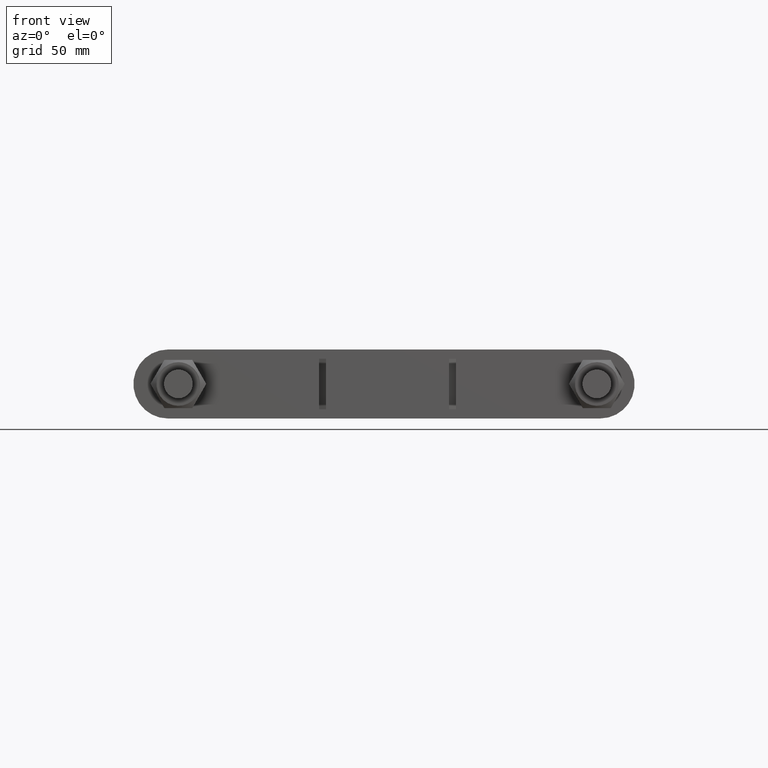
[diagram: clean part render]
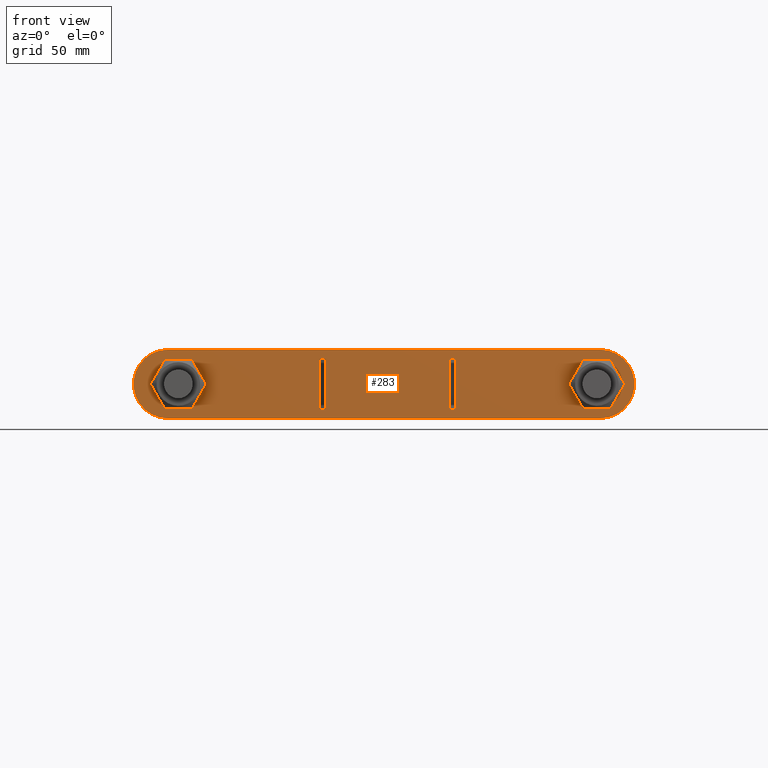
[diagram: same view with one face highlighted and labeled with its STEP entity id]
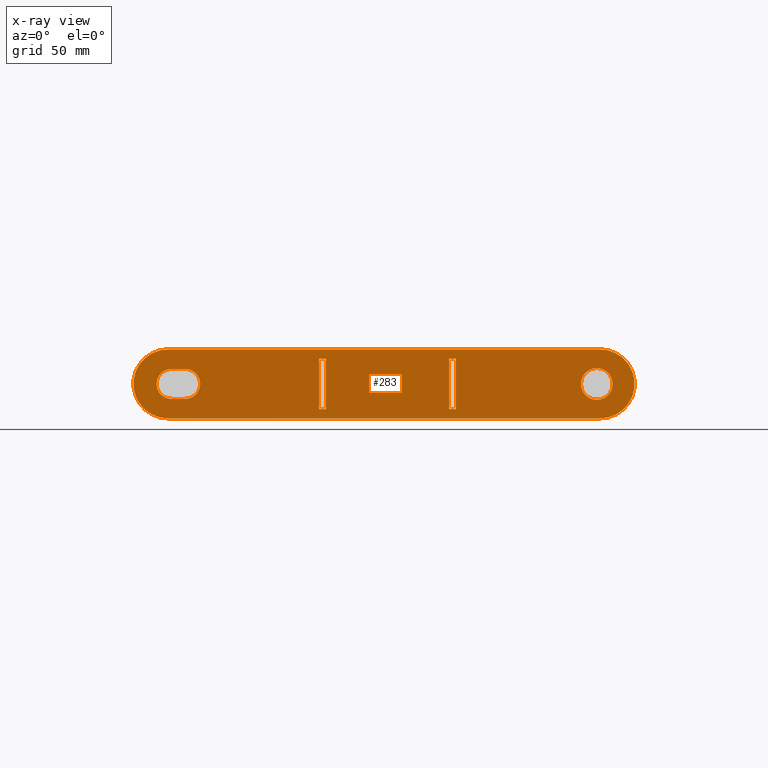
[diagram: x-ray of the same camera — body ghosted, the highlighted face saturated]
A machine part, front view. The second image highlights one B-rep face of the part: STEP entity #283.
The next image is the same camera in x-ray: the body ghosted, the highlighted face saturated — about 0% of this face is hidden behind the body in this view.
In plain terms, the highlighted planar face has unit normal (0, 1, 0).
Its self-contained STEP definition (entity closure, byte-faithful):
#283 = ADVANCED_FACE( '', ( #385, #386, #387, #388, #389 ), #390, .F. );
#385 = FACE_OUTER_BOUND( '', #1467, .T. );
#386 = FACE_BOUND( '', #1468, .T. );
#387 = FACE_BOUND( '', #1469, .T. );
#388 = FACE_BOUND( '', #1470, .T. );
#389 = FACE_BOUND( '', #1471, .T. );
#390 = PLANE( '', #1472 );
#1467 = EDGE_LOOP( '', ( #1734, #1735, #1736, #1737 ) );
#1468 = EDGE_LOOP( '', ( #1738, #1739, #1740, #1741 ) );
#1469 = EDGE_LOOP( '', ( #1742 ) );
#1470 = EDGE_LOOP( '', ( #1743, #1744, #1745, #1746 ) );
#1471 = EDGE_LOOP( '', ( #1747, #1748, #1749, #1750 ) );
#1472 = AXIS2_PLACEMENT_3D( '', #1751, #1752, #1753 );
#1734 = ORIENTED_EDGE( '', *, *, #2203, .F. );
#1735 = ORIENTED_EDGE( '', *, *, #2204, .F. );
#1736 = ORIENTED_EDGE( '', *, *, #2205, .F. );
#1737 = ORIENTED_EDGE( '', *, *, #2206, .F. );
#1738 = ORIENTED_EDGE( '', *, *, #2207, .F. );
#1739 = ORIENTED_EDGE( '', *, *, #2208, .T. );
#1740 = ORIENTED_EDGE( '', *, *, #2209, .T. );
#1741 = ORIENTED_EDGE( '', *, *, #2210, .F. );
#1742 = ORIENTED_EDGE( '', *, *, #2211, .T. );
#1743 = ORIENTED_EDGE( '', *, *, #2212, .F. );
#1744 = ORIENTED_EDGE( '', *, *, #2213, .F. );
#1745 = ORIENTED_EDGE( '', *, *, #2214, .F. );
#1746 = ORIENTED_EDGE( '', *, *, #2215, .F. );
#1747 = ORIENTED_EDGE( '', *, *, #2216, .T. );
#1748 = ORIENTED_EDGE( '', *, *, #2217, .T. );
#1749 = ORIENTED_EDGE( '', *, *, #2218, .F. );
#1750 = ORIENTED_EDGE( '', *, *, #2219, .F. );
#1751 = CARTESIAN_POINT( '', ( -95.5500000000000, 47.0000000000003, 7.48946621563771E-010 ) );
#1752 = DIRECTION( '', ( 1.31612346909528E-032, 1.00000000000000, 5.38325119430398E-017 ) );
#1753 = DIRECTION( '', ( 1.00000000000000, 2.73691106313441E-048, -2.44484870126044E-016 ) );
#2203 = EDGE_CURVE( '', #2399, #2400, #2401, .T. );
#2204 = EDGE_CURVE( '', #2402, #2399, #2403, .F. );
#2205 = EDGE_CURVE( '', #2404, #2402, #2405, .T. );
#2206 = EDGE_CURVE( '', #2400, #2404, #2406, .F. );
#2207 = EDGE_CURVE( '', #2407, #2408, #2409, .F. );
#2208 = EDGE_CURVE( '', #2407, #2410, #2411, .T. );
#2209 = EDGE_CURVE( '', #2410, #2412, #2413, .T. );
#2210 = EDGE_CURVE( '', #2408, #2412, #2414, .T. );
#2211 = EDGE_CURVE( '', #2415, #2415, #2416, .T. );
#2212 = EDGE_CURVE( '', #2417, #2418, #2419, .F. );
#2213 = EDGE_CURVE( '', #2420, #2417, #2421, .T. );
#2214 = EDGE_CURVE( '', #2422, #2420, #2423, .F. );
#2215 = EDGE_CURVE( '', #2418, #2422, #2424, .T. );
#2216 = EDGE_CURVE( '', #2425, #2426, #2427, .F. );
#2217 = EDGE_CURVE( '', #2426, #2428, #2429, .T. );
#2218 = EDGE_CURVE( '', #2430, #2428, #2431, .T. );
#2219 = EDGE_CURVE( '', #2425, #2430, #2432, .T. );
#2399 = VERTEX_POINT( '', #2883 );
#2400 = VERTEX_POINT( '', #2884 );
#2401 = CIRCLE( '', #2885, 15.0000000000000 );
#2402 = VERTEX_POINT( '', #2886 );
#2403 = LINE( '', #2887, #2888 );
#2404 = VERTEX_POINT( '', #2889 );
#2405 = CIRCLE( '', #2890, 15.0000000000000 );
#2406 = LINE( '', #2891, #2892 );
#2407 = VERTEX_POINT( '', #2893 );
#2408 = VERTEX_POINT( '', #2894 );
#2409 = LINE( '', #2895, #2896 );
#2410 = VERTEX_POINT( '', #2897 );
#2411 = LINE( '', #2898, #2899 );
#2412 = VERTEX_POINT( '', #2900 );
#2413 = LINE( '', #2901, #2902 );
#2414 = LINE( '', #2903, #2904 );
#2415 = VERTEX_POINT( '', #2905 );
#2416 = CIRCLE( '', #2906, 6.90000000000000 );
#2417 = VERTEX_POINT( '', #2907 );
#2418 = VERTEX_POINT( '', #2908 );
#2419 = CIRCLE( '', #2909, 6.50000000000000 );
#2420 = VERTEX_POINT( '', #2910 );
#2421 = LINE( '', #2911, #2912 );
#2422 = VERTEX_POINT( '', #2913 );
#2423 = CIRCLE( '', #2914, 6.50000000000000 );
#2424 = LINE( '', #2915, #2916 );
#2425 = VERTEX_POINT( '', #2917 );
#2426 = VERTEX_POINT( '', #2918 );
#2427 = LINE( '', #2919, #2920 );
#2428 = VERTEX_POINT( '', #2921 );
#2429 = LINE( '', #2922, #2923 );
#2430 = VERTEX_POINT( '', #2924 );
#2431 = LINE( '', #2925, #2926 );
#2432 = LINE( '', #2927, #2928 );
#2883 = CARTESIAN_POINT( '', ( -95.5500000001176, 47.0000000000003, -14.9999999992510 ) );
#2884 = CARTESIAN_POINT( '', ( -95.5499999999412, 47.0000000000003, 15.0000000007489 ) );
#2885 = AXIS2_PLACEMENT_3D( '', #3351, #3352, #3353 );
#2886 = CARTESIAN_POINT( '', ( 92.4499999998824, 47.0000000000003, -15.0000000007247 ) );
#2887 = CARTESIAN_POINT( '', ( 92.4499999998824, 47.0000000000003, -15.0000000007247 ) );
#2888 = VECTOR( '', #3354, 1000.00000000000 );
#2889 = CARTESIAN_POINT( '', ( 92.4500000000588, 47.0000000000003, 15.0000000000121 ) );
#2890 = AXIS2_PLACEMENT_3D( '', #3355, #3356, #3357 );
#2891 = CARTESIAN_POINT( '', ( -95.5499999998825, 47.0000000000003, 15.0000000007489 ) );
#2892 = VECTOR( '', #3358, 1000.00000000000 );
#2893 = CARTESIAN_POINT( '', ( -29.7500000000862, 47.0000000000003, -10.9999999997668 ) );
#2894 = CARTESIAN_POINT( '', ( -26.7500000000862, 47.0000000000003, -10.9999999997668 ) );
#2895 = CARTESIAN_POINT( '', ( -29.7500000000862, 47.0000000000003, -10.9999999997668 ) );
#2896 = VECTOR( '', #3359, 1000.00000000000 );
#2897 = CARTESIAN_POINT( '', ( -29.7499999999138, 47.0000000000003, 11.0000000002332 ) );
#2898 = CARTESIAN_POINT( '', ( -29.7500000000000, 47.0000000000003, 2.33198594310171E-010 ) );
#2899 = VECTOR( '', #3360, 1000.00000000000 );
#2900 = CARTESIAN_POINT( '', ( -26.7499999999138, 47.0000000000003, 11.0000000002332 ) );
#2901 = CARTESIAN_POINT( '', ( -95.5500000000000, 47.0000000000003, 11.0000000002332 ) );
#2902 = VECTOR( '', #3361, 1000.00000000000 );
#2903 = CARTESIAN_POINT( '', ( -26.7500000000862, 47.0000000000003, -10.9999999997903 ) );
#2904 = VECTOR( '', #3362, 1000.00000000000 );
#2905 = CARTESIAN_POINT( '', ( 91.0000000000000, 47.0000000000003, 6.89999999928670 ) );
#2906 = AXIS2_PLACEMENT_3D( '', #3363, #3364, #3365 );
#2907 = CARTESIAN_POINT( '', ( -93.9999999999745, 47.0000000000003, 6.50000000071328 ) );
#2908 = CARTESIAN_POINT( '', ( -94.0000000000510, 47.0000000000003, -6.49999999926320 ) );
#2909 = AXIS2_PLACEMENT_3D( '', #3366, #3367, #3368 );
#2910 = CARTESIAN_POINT( '', ( -87.9999999999746, 47.0000000000003, 6.50000000068976 ) );
#2911 = CARTESIAN_POINT( '', ( -87.9999999999491, 47.0000000000003, 6.50000000068976 ) );
#2912 = VECTOR( '', #3369, 1000.00000000000 );
#2913 = CARTESIAN_POINT( '', ( -88.0000000000510, 47.0000000000003, -6.49999999931023 ) );
#2914 = AXIS2_PLACEMENT_3D( '', #3370, #3371, #3372 );
#2915 = CARTESIAN_POINT( '', ( -94.0000000000510, 47.0000000000003, -6.49999999926320 ) );
#2916 = VECTOR( '', #3373, 1000.00000000000 );
#2917 = CARTESIAN_POINT( '', ( 29.7499999999137, 47.0000000000003, -11.0000000002332 ) );
#2918 = CARTESIAN_POINT( '', ( 26.7499999999137, 47.0000000000003, -11.0000000002332 ) );
#2919 = CARTESIAN_POINT( '', ( -95.5500000000000, 47.0000000000003, -11.0000000002332 ) );
#2920 = VECTOR( '', #3374, 1000.00000000000 );
#2921 = CARTESIAN_POINT( '', ( 26.7500000000862, 47.0000000000003, 10.9999999997668 ) );
#2922 = CARTESIAN_POINT( '', ( 26.7499999999999, 47.0000000000003, -2.09718518167680E-010 ) );
#2923 = VECTOR( '', #3375, 1000.00000000000 );
#2924 = CARTESIAN_POINT( '', ( 29.7500000000862, 47.0000000000003, 10.9999999997668 ) );
#2925 = CARTESIAN_POINT( '', ( 29.7500000000862, 47.0000000000003, 10.9999999997668 ) );
#2926 = VECTOR( '', #3376, 1000.00000000000 );
#2927 = CARTESIAN_POINT( '', ( 29.7499999999137, 47.0000000000003, -11.0000000002332 ) );
#2928 = VECTOR( '', #3377, 1000.00000000000 );
#3351 = CARTESIAN_POINT( '', ( -95.5500000000000, 47.0000000000003, 7.48946621563771E-010 ) );
#3352 = DIRECTION( '', ( 1.31612346909528E-032, 1.00000000000000, 5.38325119430398E-017 ) );
#3353 = DIRECTION( '', ( 0.000000000000000, -5.38325119430398E-017, 1.00000000000000 ) );
#3354 = DIRECTION( '', ( 1.00000000000000, 4.21946296651834E-028, -7.83837578177664E-012 ) );
#3355 = CARTESIAN_POINT( '', ( 92.4500000000000, 47.0000000000003, -7.24650678175478E-010 ) );
#3356 = DIRECTION( '', ( 1.31612346909528E-032, 1.00000000000000, 5.38325119430398E-017 ) );
#3357 = DIRECTION( '', ( 0.000000000000000, -5.38325119430398E-017, 1.00000000000000 ) );
#3358 = DIRECTION( '', ( -1.00000000000000, 1.31612346909755E-032, -4.21958976310680E-028 ) );
#3359 = DIRECTION( '', ( -1.00000000000000, 1.31612346908703E-032, 1.53267061879703E-027 ) );
#3360 = DIRECTION( '', ( 7.83811591570821E-012, -5.38325119430398E-017, 1.00000000000000 ) );
#3361 = DIRECTION( '', ( 1.00000000000000, -1.31612346908703E-032, -1.53267061879703E-027 ) );
#3362 = DIRECTION( '', ( 7.83811591570821E-012, -5.38325119430398E-017, 1.00000000000000 ) );
#3363 = CARTESIAN_POINT( '', ( 91.0000000000000, 47.0000000000003, -7.13300645803186E-010 ) );
#3364 = DIRECTION( '', ( 1.31612346909528E-032, 1.00000000000000, 5.38325119430398E-017 ) );
#3365 = DIRECTION( '', ( 0.000000000000000, -5.38325119430398E-017, 1.00000000000000 ) );
#3366 = CARTESIAN_POINT( '', ( -94.0000000000000, 47.0000000000003, 7.36795404378541E-010 ) );
#3367 = DIRECTION( '', ( 1.31612346909528E-032, 1.00000000000000, 5.38325119430398E-017 ) );
#3368 = DIRECTION( '', ( 0.000000000000000, -5.38325119430398E-017, 1.00000000000000 ) );
#3369 = DIRECTION( '', ( -1.00000000000000, 1.31612346909755E-032, -4.21958976310680E-028 ) );
#3370 = CARTESIAN_POINT( '', ( -88.0000000000001, 47.0000000000003, 6.89765149687881E-010 ) );
#3371 = DIRECTION( '', ( 1.31612346909528E-032, 1.00000000000000, 5.38325119430398E-017 ) );
#3372 = DIRECTION( '', ( 0.000000000000000, -5.38325119430398E-017, 1.00000000000000 ) );
#3373 = DIRECTION( '', ( 1.00000000000000, 4.21946296651834E-028, -7.83837578177664E-012 ) );
#3374 = DIRECTION( '', ( 1.00000000000000, -1.31612346908703E-032, -1.53266809220721E-027 ) );
#3375 = DIRECTION( '', ( 7.83863564784507E-012, -5.38325119430398E-017, 1.00000000000000 ) );
#3376 = DIRECTION( '', ( -1.00000000000000, 1.31612346908703E-032, 1.53266809220721E-027 ) );
#3377 = DIRECTION( '', ( 7.83863564784507E-012, -5.38325119430398E-017, 1.00000000000000 ) );